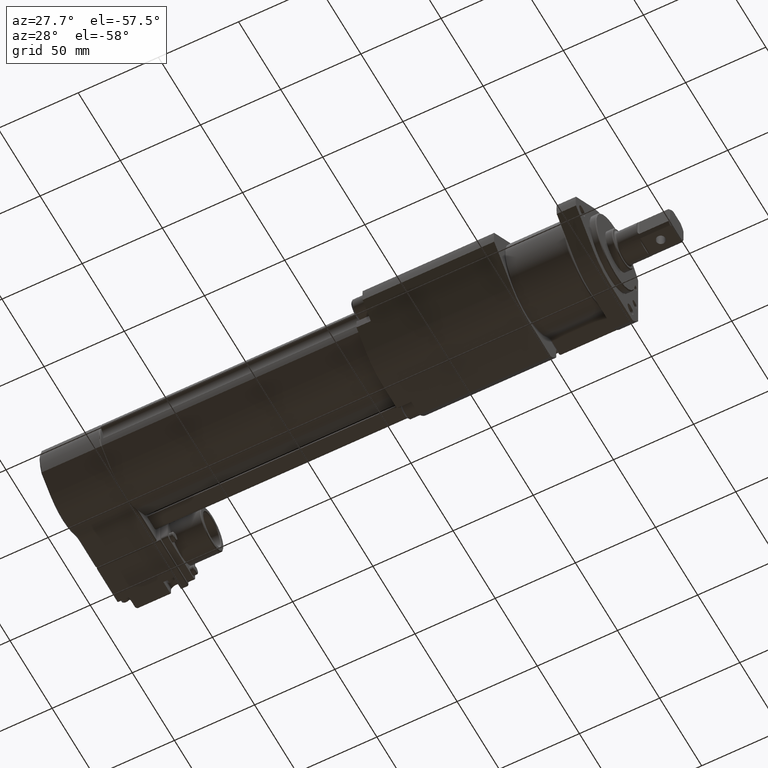
[diagram: clean part render]
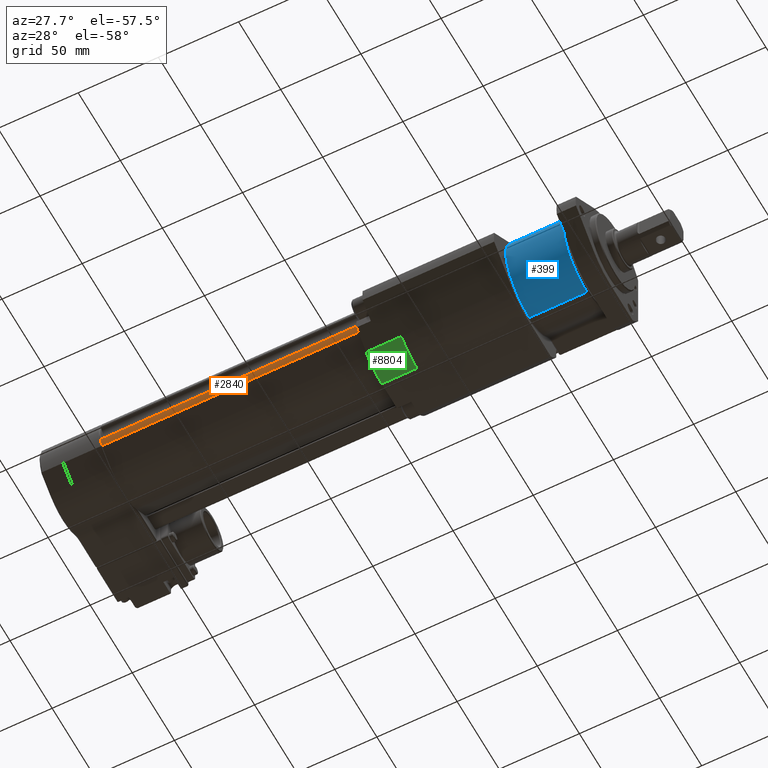
[diagram: same view with three faces highlighted in distinct colors, each labeled with its STEP entity id]
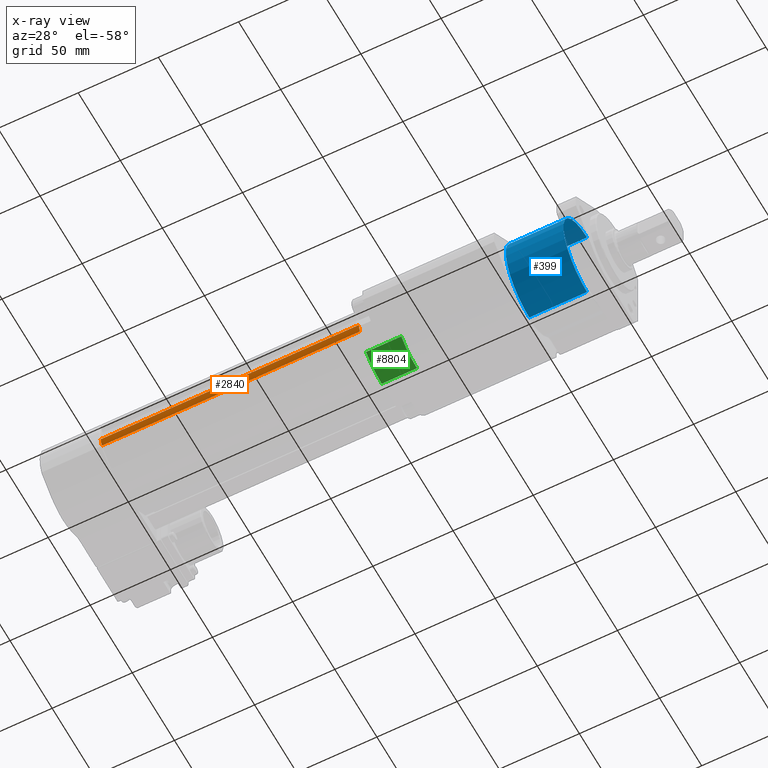
[diagram: x-ray of the same camera — body ghosted, the three highlighted faces saturated]
A machine part, auxiliary view with three faces highlighted in distinct colors.
The next image is the same camera in x-ray (body ghosted, the three faces saturated) — at least one of them is partly hidden behind the body in this view.
Their STEP definitions:

[orange] entity #2840 — the highlighted cylindrical surface (partial cylindrical patch) has radius 28 mm, axis along (1, 0, 0).
#408 = CARTESIAN_POINT ( 'NONE',  ( -303.0000000000000000, 0.0000000000000000000, 0.0000000000000000000 ) ) ;
#464 = DIRECTION ( 'NONE',  ( 1.000000000000000000, -0.0000000000000000000, -0.0000000000000000000 ) ) ;
#598 = CARTESIAN_POINT ( 'NONE',  ( -303.0000000000000000, -27.25000000000000400, -6.437196594791859500 ) ) ;
#840 = DIRECTION ( 'NONE',  ( 1.000000000000000000, -0.0000000000000000000, -0.0000000000000000000 ) ) ;
#1193 = CYLINDRICAL_SURFACE ( 'NONE', #12324, 28.00000000000000000 ) ;
#1228 = LINE ( 'NONE', #6176, #1841 ) ;
#1350 = DIRECTION ( 'NONE',  ( 0.0000000000000000000, 0.0000000000000000000, 1.000000000000000000 ) ) ;
#1537 = CARTESIAN_POINT ( 'NONE',  ( -142.0000000000000000, -25.76553998420780900, -10.96070022043247900 ) ) ;
#1582 = ORIENTED_EDGE ( 'NONE', *, *, #7392, .T. ) ;
#1746 = VERTEX_POINT ( 'NONE', #1768 ) ;
#1768 = CARTESIAN_POINT ( 'NONE',  ( -142.0000000000000000, -27.25000000000000400, -6.437196594791859500 ) ) ;
#1841 = VECTOR ( 'NONE', #464, 1000.000000000000000 ) ;
#1961 = DIRECTION ( 'NONE',  ( 1.000000000000000000, -0.0000000000000000000, -0.0000000000000000000 ) ) ;
#2115 = EDGE_CURVE ( 'NONE', #8680, #3994, #2389, .T. ) ;
#2161 = ORIENTED_EDGE ( 'NONE', *, *, #2115, .F. ) ;
#2389 = CIRCLE ( 'NONE', #3050, 28.00000000000000000 ) ;
#2702 = EDGE_CURVE ( 'NONE', #8680, #8957, #10328, .T. ) ;
#2840 = ADVANCED_FACE ( 'NONE', ( #8837 ), #1193, .T. ) ;
#3050 = AXIS2_PLACEMENT_3D ( 'NONE', #408, #7066, #1350 ) ;
#3462 = EDGE_CURVE ( 'NONE', #3994, #1746, #1228, .T. ) ;
#3994 = VERTEX_POINT ( 'NONE', #598 ) ;
#4012 = CARTESIAN_POINT ( 'NONE',  ( -303.0000000000000000, -25.76553998420780900, -10.96070022043247900 ) ) ;
#4835 = DIRECTION ( 'NONE',  ( 0.0000000000000000000, 0.0000000000000000000, -1.000000000000000000 ) ) ;
#5376 = DIRECTION ( 'NONE',  ( -1.000000000000000000, 0.0000000000000000000, 0.0000000000000000000 ) ) ;
#6176 = CARTESIAN_POINT ( 'NONE',  ( -303.0000000000000000, -27.25000000000000400, -6.437196594791859500 ) ) ;
#6561 = CARTESIAN_POINT ( 'NONE',  ( -303.0000000000000000, -25.76553998420780900, -10.96070022043247900 ) ) ;
#7066 = DIRECTION ( 'NONE',  ( -1.000000000000000000, 0.0000000000000000000, 0.0000000000000000000 ) ) ;
#7392 = EDGE_CURVE ( 'NONE', #8957, #1746, #12128, .T. ) ;
#7787 = AXIS2_PLACEMENT_3D ( 'NONE', #11103, #5376, #12077 ) ;
#7796 = VECTOR ( 'NONE', #840, 1000.000000000000000 ) ;
#8680 = VERTEX_POINT ( 'NONE', #4012 ) ;
#8837 = FACE_OUTER_BOUND ( 'NONE', #11785, .T. ) ;
#8880 = ORIENTED_EDGE ( 'NONE', *, *, #3462, .F. ) ;
#8957 = VERTEX_POINT ( 'NONE', #1537 ) ;
#10328 = LINE ( 'NONE', #6561, #7796 ) ;
#10365 = ORIENTED_EDGE ( 'NONE', *, *, #2702, .T. ) ;
#10580 = CARTESIAN_POINT ( 'NONE',  ( -303.0000000000000000, 0.0000000000000000000, 0.0000000000000000000 ) ) ;
#11103 = CARTESIAN_POINT ( 'NONE',  ( -142.0000000000000000, 0.0000000000000000000, 0.0000000000000000000 ) ) ;
#11785 = EDGE_LOOP ( 'NONE', ( #1582, #8880, #2161, #10365 ) ) ;
#12077 = DIRECTION ( 'NONE',  ( 0.0000000000000000000, 0.0000000000000000000, 1.000000000000000000 ) ) ;
#12128 = CIRCLE ( 'NONE', #7787, 28.00000000000000000 ) ;
#12324 = AXIS2_PLACEMENT_3D ( 'NONE', #10580, #1961, #4835 ) ;

[blue] entity #399 — the highlighted cylindrical surface (partial cylindrical patch) has radius 28 mm, axis along (1, 0, 0).
#51 = LINE ( 'NONE', #11587, #1976 ) ;
#70 = CYLINDRICAL_SURFACE ( 'NONE', #4950, 28.00000000000000000 ) ;
#399 = ADVANCED_FACE ( 'NONE', ( #7688 ), #70, .T. ) ;
#1160 = DIRECTION ( 'NONE',  ( 1.000000000000000000, -0.0000000000000000000, -0.0000000000000000000 ) ) ;
#1886 = VERTEX_POINT ( 'NONE', #3936 ) ;
#1976 = VECTOR ( 'NONE', #6808, 1000.000000000000000 ) ;
#2842 = DIRECTION ( 'NONE',  ( 1.000000000000000000, -0.0000000000000000000, -0.0000000000000000000 ) ) ;
#3919 = CARTESIAN_POINT ( 'NONE',  ( -13.99999999999999800, 3.429011037612589300E-015, 28.00000000000000000 ) ) ;
#3928 = DIRECTION ( 'NONE',  ( -1.000000000000000000, 0.0000000000000000000, 0.0000000000000000000 ) ) ;
#3936 = CARTESIAN_POINT ( 'NONE',  ( -50.00000000000000000, 0.0000000000000000000, -28.00000000000000000 ) ) ;
#4088 = VERTEX_POINT ( 'NONE', #10252 ) ;
#4328 = ORIENTED_EDGE ( 'NONE', *, *, #6454, .T. ) ;
#4950 = AXIS2_PLACEMENT_3D ( 'NONE', #10885, #9012, #8975 ) ;
#5004 = CARTESIAN_POINT ( 'NONE',  ( -51.00000000000000700, 3.429011037612589300E-015, 28.00000000000000000 ) ) ;
#5645 = VECTOR ( 'NONE', #1160, 1000.000000000000000 ) ;
#6454 = EDGE_CURVE ( 'NONE', #1886, #4088, #51, .T. ) ;
#6546 = CIRCLE ( 'NONE', #10522, 28.00000000000000000 ) ;
#6808 = DIRECTION ( 'NONE',  ( 1.000000000000000000, -0.0000000000000000000, -0.0000000000000000000 ) ) ;
#7247 = AXIS2_PLACEMENT_3D ( 'NONE', #8589, #2842, #9547 ) ;
#7252 = CARTESIAN_POINT ( 'NONE',  ( -50.00000000000000000, 3.429011037612589300E-015, 28.00000000000000000 ) ) ;
#7444 = ORIENTED_EDGE ( 'NONE', *, *, #9207, .F. ) ;
#7688 = FACE_OUTER_BOUND ( 'NONE', #10782, .T. ) ;
#8589 = CARTESIAN_POINT ( 'NONE',  ( -50.00000000000000000, 0.0000000000000000000, 0.0000000000000000000 ) ) ;
#8975 = DIRECTION ( 'NONE',  ( 0.0000000000000000000, 0.0000000000000000000, -1.000000000000000000 ) ) ;
#9012 = DIRECTION ( 'NONE',  ( 1.000000000000000000, -0.0000000000000000000, -0.0000000000000000000 ) ) ;
#9112 = EDGE_CURVE ( 'NONE', #4088, #9578, #6546, .T. ) ;
#9201 = CIRCLE ( 'NONE', #7247, 28.00000000000000000 ) ;
#9207 = EDGE_CURVE ( 'NONE', #12368, #9578, #10730, .T. ) ;
#9547 = DIRECTION ( 'NONE',  ( 0.0000000000000000000, 0.0000000000000000000, 1.000000000000000000 ) ) ;
#9578 = VERTEX_POINT ( 'NONE', #3919 ) ;
#9662 = CARTESIAN_POINT ( 'NONE',  ( -13.99999999999999800, 0.0000000000000000000, 0.0000000000000000000 ) ) ;
#10252 = CARTESIAN_POINT ( 'NONE',  ( -13.99999999999999800, 0.0000000000000000000, -28.00000000000000000 ) ) ;
#10522 = AXIS2_PLACEMENT_3D ( 'NONE', #9662, #3928, #10622 ) ;
#10622 = DIRECTION ( 'NONE',  ( 0.0000000000000000000, 0.0000000000000000000, 1.000000000000000000 ) ) ;
#10730 = LINE ( 'NONE', #5004, #5645 ) ;
#10782 = EDGE_LOOP ( 'NONE', ( #7444, #11680, #4328, #11371 ) ) ;
#10885 = CARTESIAN_POINT ( 'NONE',  ( -51.00000000000000700, 0.0000000000000000000, 0.0000000000000000000 ) ) ;
#11371 = ORIENTED_EDGE ( 'NONE', *, *, #9112, .T. ) ;
#11582 = EDGE_CURVE ( 'NONE', #12368, #1886, #9201, .T. ) ;
#11587 = CARTESIAN_POINT ( 'NONE',  ( -51.00000000000000700, 0.0000000000000000000, -28.00000000000000000 ) ) ;
#11680 = ORIENTED_EDGE ( 'NONE', *, *, #11582, .T. ) ;
#12368 = VERTEX_POINT ( 'NONE', #7252 ) ;

[green] entity #8804 — the highlighted cylindrical surface (partial cylindrical patch) has radius 29 mm, axis along (1, 0, 0).
#1271 = CIRCLE ( 'NONE', #7812, 28.99999999999999600 ) ;
#1288 = DIRECTION ( 'NONE',  ( 0.0000000000000000000, 0.0000000000000000000, -1.000000000000000000 ) ) ;
#1758 = VERTEX_POINT ( 'NONE', #3702 ) ;
#1920 = CYLINDRICAL_SURFACE ( 'NONE', #9482, 28.99999999999999600 ) ;
#2207 = FACE_OUTER_BOUND ( 'NONE', #8467, .T. ) ;
#2373 = LINE ( 'NONE', #8020, #4626 ) ;
#2639 = VERTEX_POINT ( 'NONE', #9285 ) ;
#2662 = CARTESIAN_POINT ( 'NONE',  ( -142.0000000000000000, 0.0000000000000000000, 0.0000000000000000000 ) ) ;
#2793 = ORIENTED_EDGE ( 'NONE', *, *, #10491, .F. ) ;
#3646 = DIRECTION ( 'NONE',  ( 0.0000000000000000000, 0.0000000000000000000, 1.000000000000000000 ) ) ;
#3702 = CARTESIAN_POINT ( 'NONE',  ( -142.0000000000000000, -18.64084068090952000, -22.21528885045046000 ) ) ;
#4196 = DIRECTION ( 'NONE',  ( 1.000000000000000000, -0.0000000000000000000, -0.0000000000000000000 ) ) ;
#4360 = CARTESIAN_POINT ( 'NONE',  ( -142.0000000000000000, 3.551475717527324000E-015, -28.99999999999999600 ) ) ;
#4424 = CARTESIAN_POINT ( 'NONE',  ( -120.0000000000000000, 0.0000000000000000000, 0.0000000000000000000 ) ) ;
#4626 = VECTOR ( 'NONE', #4196, 1000.000000000000000 ) ;
#5132 = DIRECTION ( 'NONE',  ( 1.000000000000000000, -0.0000000000000000000, -0.0000000000000000000 ) ) ;
#5182 = EDGE_CURVE ( 'NONE', #1758, #12331, #2373, .T. ) ;
#5283 = CARTESIAN_POINT ( 'NONE',  ( -120.0000000000000000, -18.64084068090952000, -22.21528885045046000 ) ) ;
#5390 = DIRECTION ( 'NONE',  ( 0.0000000000000000000, 0.0000000000000000000, 1.000000000000000000 ) ) ;
#7011 = CARTESIAN_POINT ( 'NONE',  ( -142.0000000000000000, 0.0000000000000000000, 0.0000000000000000000 ) ) ;
#7201 = ORIENTED_EDGE ( 'NONE', *, *, #10396, .T. ) ;
#7321 = VERTEX_POINT ( 'NONE', #10014 ) ;
#7550 = ORIENTED_EDGE ( 'NONE', *, *, #12340, .T. ) ;
#7812 = AXIS2_PLACEMENT_3D ( 'NONE', #4424, #11116, #5390 ) ;
#8020 = CARTESIAN_POINT ( 'NONE',  ( -142.0000000000000000, -18.64084068090952000, -22.21528885045046000 ) ) ;
#8467 = EDGE_LOOP ( 'NONE', ( #7201, #9637, #2793, #7550 ) ) ;
#8804 = ADVANCED_FACE ( 'NONE', ( #2207 ), #1920, .T. ) ;
#9285 = CARTESIAN_POINT ( 'NONE',  ( -142.0000000000000000, 3.551475717527324000E-015, -28.99999999999999600 ) ) ;
#9374 = DIRECTION ( 'NONE',  ( -1.000000000000000000, 0.0000000000000000000, 0.0000000000000000000 ) ) ;
#9482 = AXIS2_PLACEMENT_3D ( 'NONE', #7011, #5132, #1288 ) ;
#9637 = ORIENTED_EDGE ( 'NONE', *, *, #5182, .F. ) ;
#10014 = CARTESIAN_POINT ( 'NONE',  ( -120.0000000000000000, 3.551475717527324000E-015, -28.99999999999999600 ) ) ;
#10250 = CIRCLE ( 'NONE', #12308, 28.99999999999999600 ) ;
#10375 = VECTOR ( 'NONE', #11015, 1000.000000000000000 ) ;
#10396 = EDGE_CURVE ( 'NONE', #7321, #12331, #1271, .T. ) ;
#10491 = EDGE_CURVE ( 'NONE', #2639, #1758, #10250, .T. ) ;
#10677 = LINE ( 'NONE', #4360, #10375 ) ;
#11015 = DIRECTION ( 'NONE',  ( 1.000000000000000000, -0.0000000000000000000, -0.0000000000000000000 ) ) ;
#11116 = DIRECTION ( 'NONE',  ( -1.000000000000000000, 0.0000000000000000000, 0.0000000000000000000 ) ) ;
#12308 = AXIS2_PLACEMENT_3D ( 'NONE', #2662, #9374, #3646 ) ;
#12331 = VERTEX_POINT ( 'NONE', #5283 ) ;
#12340 = EDGE_CURVE ( 'NONE', #2639, #7321, #10677, .T. ) ;